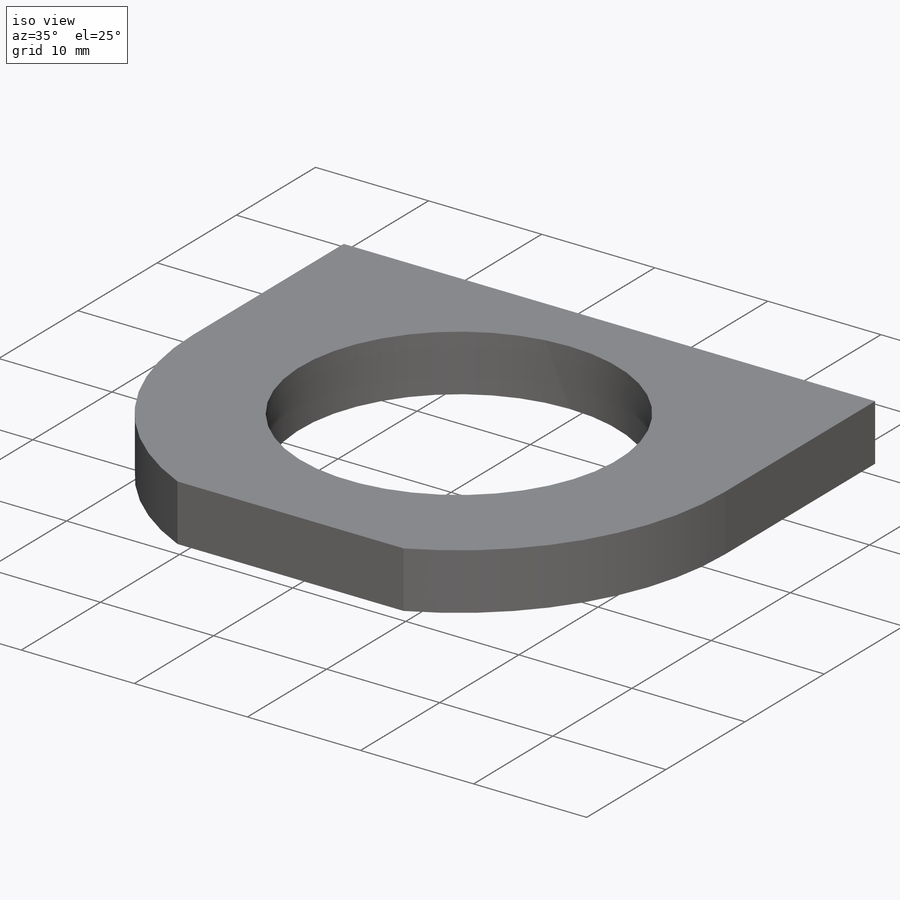
[diagram: iso view]
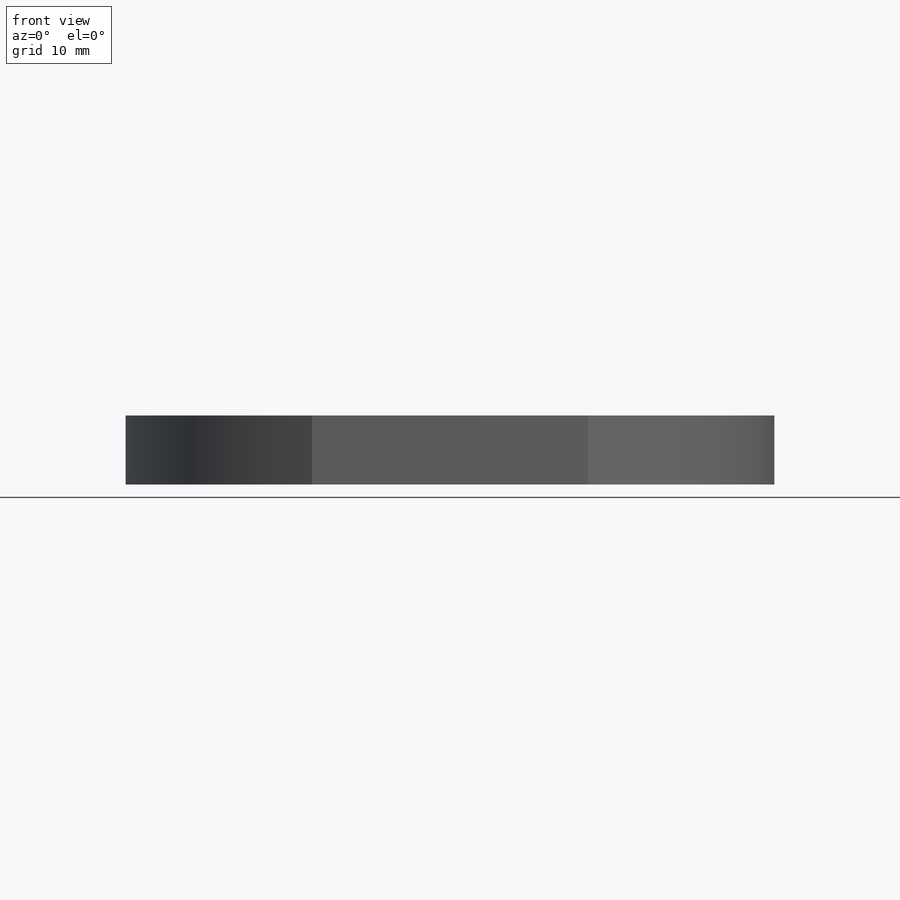
[diagram: front view]
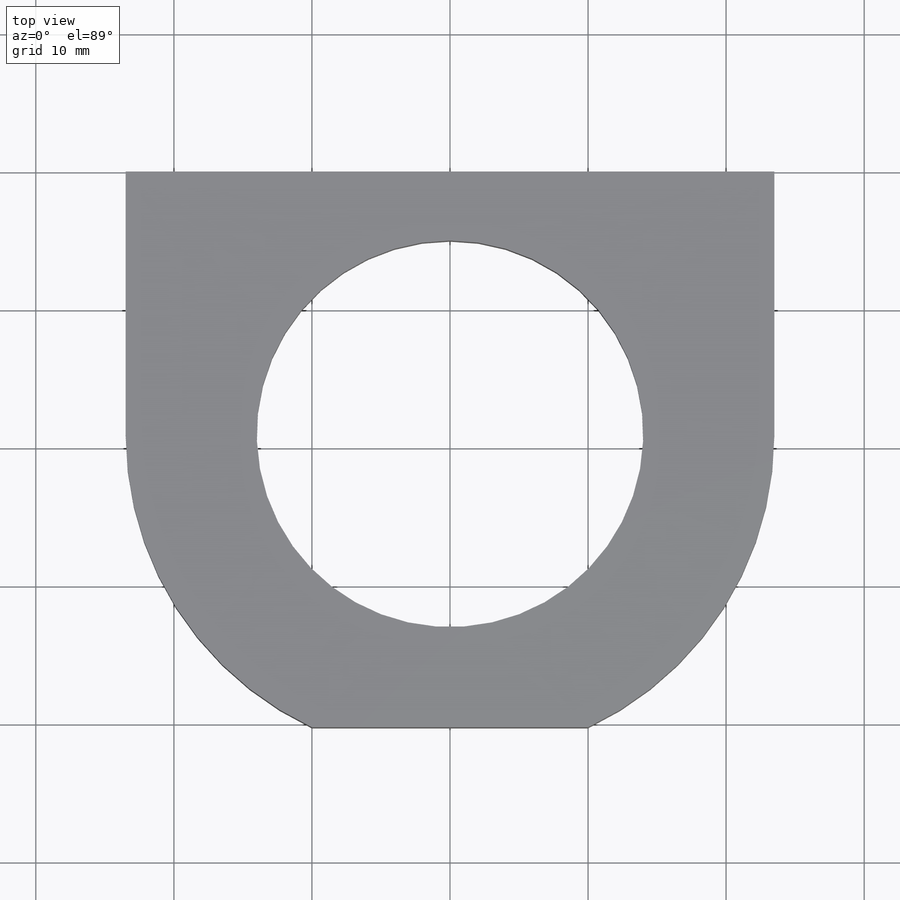
[diagram: top view]
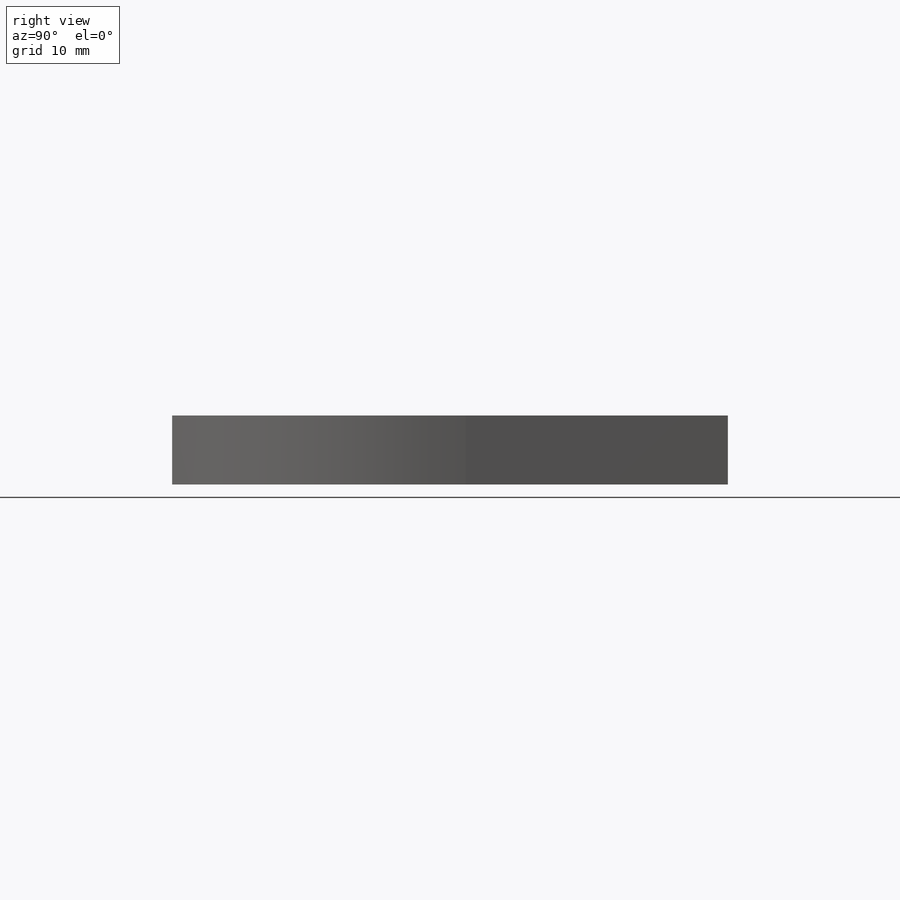
[diagram: right view]
SOLIDWORKS PART (.sldprt)
format: sldprt  version: not decoded by parser v0  size: 280,576 bytes
history: native  units: mm
features: sketch x8, plane x4, cut_extrude x3, extrude x2, thread x2, material x1, hole x1 + 2 further entries (+8 scaffold rows collapsed)
feature tree (31):
  scaffold x8  (default folders/planes/origin — collapsed)
  material  "ｱｸﾘﾙ (中-上級の耐衝撃性)"
  "ｻｰﾌｪｽ ﾎﾞﾃﾞｨ"
  "ｿﾘｯﾄﾞ ﾎﾞﾃﾞｨ"
  plane  "正面"
  plane  "平面"
  plane  "右側面"
  sketch  "ｽｹｯﾁ1"  dims[D1=5.0mm D2=47.0mm]
  extrude  "ﾎﾞｽ - 押し出し1"  Depth=19mm
  sketch  "ｽｹｯﾁ2"  dims[D1=43.0mm]
  extrude  "ﾎﾞｽ - 押し出し2"  Depth=5mm
  sketch  "ｽｹｯﾁ3"  dims[c1.D2=12.0mm c1.D3=28.0mm c1.D6=3.0mm c1.D7=3.0mm c1.D8=3.0mm c1.D9=31.0mm c1.D1=7.0mm c1.D4=~14.129218mm c2.D4=120.0deg c2.D5=7.75mm c3.D5=120.0deg c3.D1=19.0mm]
  sketch  "ｽｹｯﾁ4"  dims[D1=18.0mm D2=18.0mm]
  hole  "M2.5x0.45 ねじ穴1"  [1 undecoded]
  sketch  "ｽｹｯﾁ6"  dims[D1=8.0mm]
  sketch  "ｽｹｯﾁ5"  dims[hole-wizard template sketch: 46 standard entries collapsed; hole parameters kept: c15.ねじ下穴ﾄﾞﾘﾙ直径=2.05mm c15.ねじ下穴ﾄﾞﾘﾙの深さ=7.25mm c15.D3=~14.816244mm c15.ﾄﾞﾘﾙ角度=118.0deg]
  thread  "穴のねじ山1"  Diameter=5mm  [1 undecoded]
  thread  "穴のねじ山2"  Diameter=5mm  [1 undecoded]
  plane  "平面1"
  cut_extrude  "ｶｯﾄ - 押し出し1"  Depth=5mm
  sketch  "ｽｹｯﾁ10"
  cut_extrude  "ｶｯﾄ - 押し出し2"  [1 undecoded]
  sketch  "ｽｹｯﾁ11"  dims[D1=20.0mm]
  cut_extrude  "ｶｯﾄ - 押し出し3"  Depth=5mm
decode coverage: 13 of 16 modeling features carry decoded parameters; 2 rows unclassified (native names shown)
note: ~ marks probable driven/reference dimensions
note: 4 parameter values undecoded
note: suppression state not decoded; provenance and decode notes live in map.json
